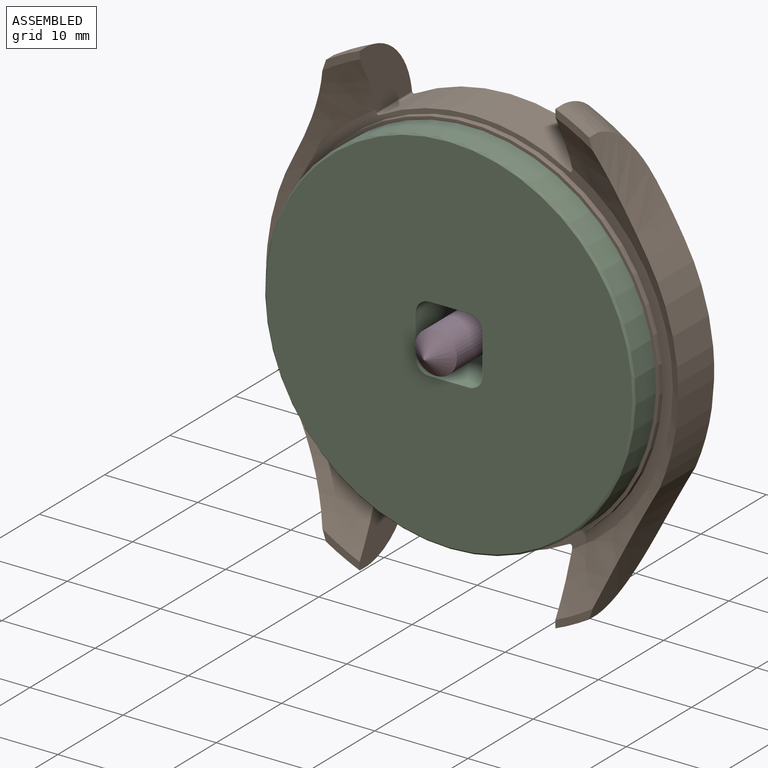
[diagram: assembled view]
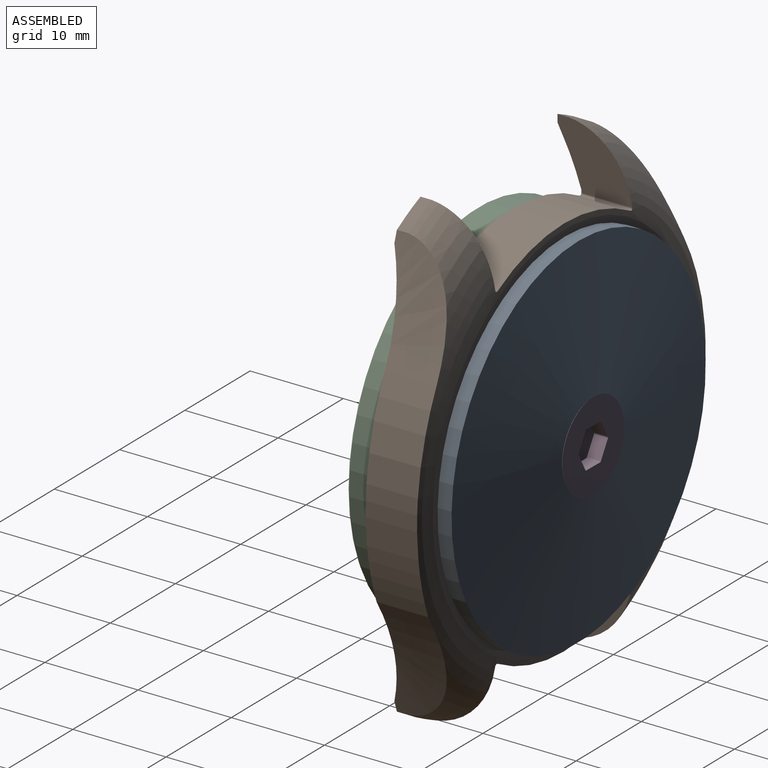
[diagram: assembled view, second angle]
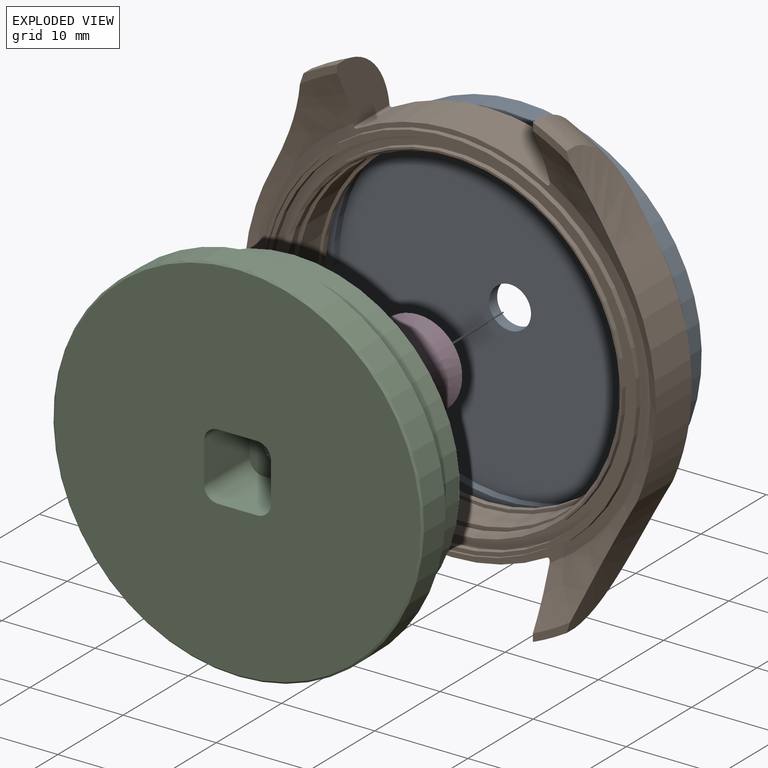
[diagram: exploded view]
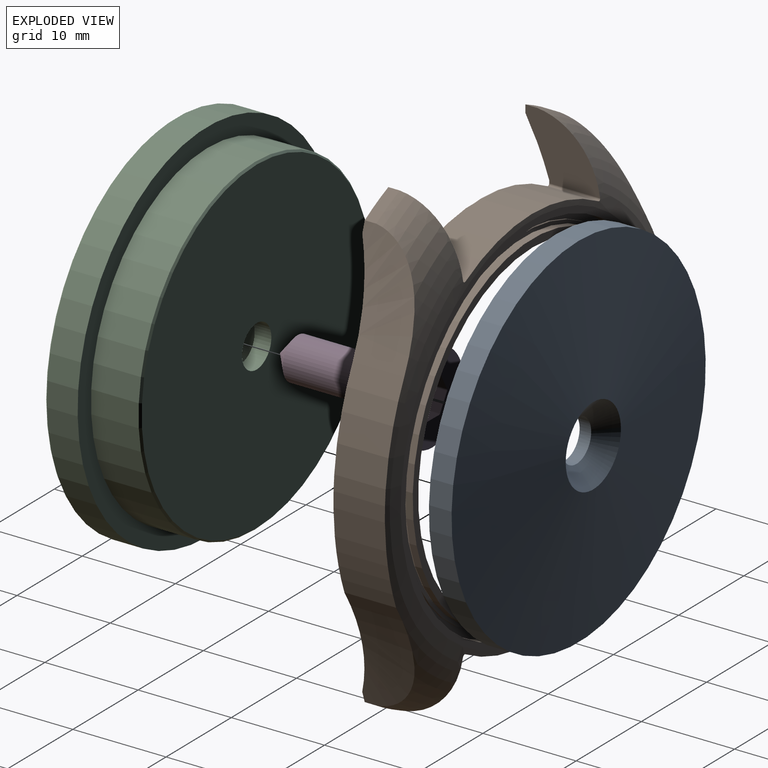
[diagram: exploded view, second angle]
ASSEMBLY  parts=4 mates=3
PART A: 7 faces, bbox 4x38.9x38.9 mm
  f0: cone r=19.47mm half-angle=84.2deg, axis (-1,0,0), area 1141.1mm2, adj f1,f6
  f1: cylinder r=19.47mm len=38.95mm, axis (-1,0,0), area 297.3mm2, adj f0,f2
  f2: plane 38.95x38.95mm, normal (-1,0,0), area 130.5mm2, adj f1,f3
  f3: cylinder r=18.38mm len=36.75mm, axis (-1,0,0), area 107.4mm2, adj f2,f4
  f4: plane 36.75x36.75mm, normal (-1,0,0), area 1044.8mm2, adj f3,f5
  f5: cylinder r=2.25mm len=4.5mm, axis (-1,0,0), area 17.6mm2, adj f4,f6
  f6: bspline ~8.47x8.47mm, area 54.6mm2, adj f0,f5
PART B: 52 faces, bbox 59.5x8.5x59.5 mm
  f0: cylinder r=27.3mm len=3.62mm, axis (0,-1,0), area 5mm2, adj f6,f9,f38,f46
  f1: cylinder r=27.3mm len=3.62mm, axis (0,-1,0), area 5mm2, adj f9,f35,f41,f44
  f2: plane 4x2.97mm, normal (0,-1,0), area 3.3mm2, adj f5,f7,f39,f45
  f3: plane 4x2.97mm, normal (0,-1,0), area 3.3mm2, adj f8,f34,f36,f43
  f4: plane 42.6x41.5mm, normal (0,-1,0), area 113mm2, adj f5,f33,f34,f36,f37,f38,f39,f40
  f5: torus R=10.97mm, axis (0,-1,0), area 113mm2, adj f2,f4,f6,f38,f39,f45,f46,f47
  f6: plane 4x2.97mm, normal (0,-1,0), area 3.3mm2, adj f0,f5,f38,f46
  f7: cylinder r=27.3mm len=3.62mm, axis (0,-1,0), area 5mm2, adj f2,f9,f39,f45
  f8: cylinder r=27.3mm len=3.62mm, axis (0,-1,0), area 5mm2, adj f3,f9,f36,f43
  f9: torus R=19.83mm, axis (0,-1,0), area 417.3mm2, adj f0,f1,f7,f8,f10,f36,f37,f38
  f10: plane 40.38x40.38mm, normal (0,1,0), area 90.5mm2, adj f9,f11
  f11: cylinder r=19.46mm len=38.93mm, axis (0,-1,0), area 137.6mm2, adj f10,f12
  f12: plane 38.93x38.93mm, normal (0,1,0), area 92.9mm2, adj f11,f13
  f13: cylinder r=18.69mm len=37.38mm, axis (0,-1,0), area 23.5mm2, adj f12,f14
  f14: plane 37.38x37.38mm, normal (0,1,0), area 49.2mm2, adj f13,f15
  f15: cone r=18.35mm half-angle=30deg, axis (0,1,0), area 19.9mm2, adj f14,f16
  f16: cylinder r=18.35mm len=36.7mm, axis (0,-1,0), area 89.4mm2, adj f15,f17
  f17: plane 36.7x36.7mm, normal (0,1,0), area 94.9mm2, adj f16,f18
  f18: cylinder r=17.51mm len=35.02mm, axis (0,-1,0), area 66mm2, adj f17,f19
  f19: plane 35.72x35.72mm, normal (0,-1,0), area 38.9mm2, adj f18,f20
  f20: cylinder r=17.86mm len=35.72mm, axis (0,-1,0), area 387.1mm2, adj f19,f21
  f21: plane 36.6x36.6mm, normal (0,-1,0), area 50.3mm2, adj f20,f22
  f22: cylinder r=18.3mm len=36.6mm, axis (0,-1,0), area 34.5mm2, adj f21,f23
  f23: cone r=18.3mm half-angle=43.3deg, axis (0,1,0), area 47.9mm2, adj f22,f24
  f24: cylinder r=18.01mm len=36.03mm, axis (0,-1,0), area 100.6mm2, adj f23,f25
  f25: cone r=18.3mm half-angle=43.3deg, axis (0,-1,0), area 47.9mm2, adj f24,f26
  f26: plane 37.03x37.03mm, normal (0,-1,0), area 24.6mm2, adj f25,f27
  f27: cylinder r=18.51mm len=37.03mm, axis (0,-1,0), area 65.7mm2, adj f26,f28
  f28: plane 39x39mm, normal (0,-1,0), area 117.6mm2, adj f27,f29
  f29: cylinder r=19.5mm len=39mm, axis (0,-1,0), area 75.3mm2, adj f28,f30
  f30: plane 39.83x39.83mm, normal (0,-1,0), area 51.4mm2, adj f29,f31
  f31: cylinder r=19.91mm len=39.83mm, axis (0,-1,0), area 31.3mm2, adj f30,f32
  f32: plane 40.5x40.5mm, normal (0,-1,0), area 42.6mm2, adj f31,f33
  f33: cylinder r=20.25mm len=40.5mm, axis (0,-1,0), area 76.3mm2, adj f4,f32
  f34: torus R=10.97mm, axis (0,-1,0), area 113mm2, adj f3,f4,f35,f36,f41,f42,f43,f44
  f35: plane 4x2.97mm, normal (0,-1,0), area 3.3mm2, adj f1,f34,f41,f44
  f36: plane 8.38x7.32mm, normal (-1,0,0), area 34.6mm2, adj f3,f4,f8,f9,f34,f48
  f37: cylinder r=20.75mm len=20.4mm, axis (0,1,0), area 117.4mm2, adj f4,f9,f48,f49
  f38: plane 8.38x7.32mm, normal (1,0,0), area 34.6mm2, adj f0,f4,f5,f6,f9,f49
  f39: plane 8.38x7.32mm, normal (1,0,0), area 34.6mm2, adj f2,f4,f5,f7,f9,f51
  f40: cylinder r=20.75mm len=20.4mm, axis (0,1,0), area 117.4mm2, adj f4,f9,f50,f51
  f41: plane 8.38x7.32mm, normal (-1,0,0), area 34.6mm2, adj f1,f4,f9,f34,f35,f50
  f42: cylinder r=25.39mm len=21.88mm, axis (0,1,0), area 125.6mm2, adj f9,f34,f43,f44
  f43: cylinder r=67.35mm len=13.52mm, axis (0,1,0), area 76.4mm2, adj f3,f8,f9,f34,f42
  f44: cylinder r=67.35mm len=11.33mm, axis (0,1,0), area 62.4mm2, adj f1,f9,f34,f35,f42
  f45: cylinder r=67.35mm len=11.33mm, axis (0,1,0), area 62.4mm2, adj f2,f5,f7,f9,f47
  f46: cylinder r=67.35mm len=13.52mm, axis (0,1,0), area 76.4mm2, adj f0,f5,f6,f9,f47
  f47: cylinder r=25.39mm len=21.88mm, axis (0,1,0), area 125.6mm2, adj f5,f9,f45,f46
  f48: cylinder r=0.2mm len=5.5mm, axis (0,1,0), area 2.3mm2, adj f4,f9,f36,f37
  f49: cylinder r=0.2mm len=5.5mm, axis (0,1,0), area 2.3mm2, adj f4,f9,f37,f38
  f50: cylinder r=0.2mm len=5.5mm, axis (0,1,0), area 2.3mm2, adj f4,f9,f40,f41
  f51: cylinder r=0.2mm len=5.5mm, axis (0,1,0), area 2.3mm2, adj f4,f9,f39,f40
PART C: 17 faces, bbox 39.8x8.8x39.8 mm
  f0: plane 39.35x39.35mm, normal (0,-1,0), area 1166.2mm2, adj f6,f7,f8,f9,f10,f11,f12,f13
  f1: cylinder r=2.25mm len=4.5mm, axis (0,1,0), area 25.4mm2, adj f4,f14
  f2: plane 39.75x39.75mm, normal (0,1,0), area 242.8mm2, adj f3,f5
  f3: cylinder r=17.82mm len=35.65mm, axis (0,-1,0), area 571.2mm2, adj f2,f15
  f4: plane 35.25x35.25mm, normal (0,1,0), area 960mm2, adj f1,f15
  f5: cylinder r=19.88mm len=39.75mm, axis (0,-1,0), area 412.1mm2, adj f2,f16
  f6: plane 7x4.2mm, normal (0,0,1), area 29.4mm2, adj f0,f7,f13,f14
  f7: cylinder r=1.5mm len=7mm, axis (0,-1,0), area 16.5mm2, adj f0,f6,f8,f14
  f8: plane 7x4.2mm, normal (-1,0,0), area 29.4mm2, adj f0,f7,f9,f14
  f9: cylinder r=1.5mm len=7mm, axis (0,-1,0), area 16.5mm2, adj f0,f8,f10,f14
  f10: plane 7x4.2mm, normal (0,0,-1), area 29.4mm2, adj f0,f9,f11,f14
  f11: cylinder r=1.5mm len=7mm, axis (0,-1,0), area 16.5mm2, adj f0,f10,f12,f14
  f12: plane 7x4.2mm, normal (1,0,0), area 29.4mm2, adj f0,f11,f13,f14
  f13: cylinder r=1.5mm len=7mm, axis (0,-1,0), area 16.5mm2, adj f0,f6,f12,f14
  f14: plane 7.2x7.2mm, normal (0,-1,0), area 34mm2, adj f1,f6,f7,f8,f9,f10,f11,f12
  f15: cone r=17.82mm half-angle=45deg, axis (0,-1,0), area 31.5mm2, adj f3,f4
  f16: cone r=19.68mm half-angle=45deg, axis (0,1,0), area 35.1mm2, adj f0,f5
PART D: 17 faces, bbox 9.5x16.4x9.5 mm
  f0: cylinder r=2.25mm len=12mm, axis (0,-1,0), area 169.6mm2, adj f1,f3
  f1: cone r=2.25mm half-angle=45deg, axis (0,1,0), area 77.8mm2, adj f0,f2
  f2: plane 9.5x9.5mm, normal (0,1,0), area 57.3mm2, adj f1,f4,f5,f6,f7,f8,f9,f11
  f3: cone r=2.25mm half-angle=50deg, axis (0,1,0), area 20.8mm2, adj f0
  f4: plane 2.05x1.5mm, normal (-0.01,0,1), area 3.1mm2, adj f2,f10,f11,f16
  f5: plane 1.76x1.5mm, normal (0.86,0,0.51), area 3.1mm2, adj f2,f10,f11,f12
  f6: plane 1.79x1.5mm, normal (0.87,0,-0.49), area 3.1mm2, adj f2,f10,f12,f13
  f7: plane 2.05x1.5mm, normal (0.01,0,-1), area 3.1mm2, adj f2,f10,f13,f14
  f8: plane 1.76x1.5mm, normal (-0.86,0,-0.51), area 3.1mm2, adj f2,f10,f14,f15
  f9: plane 1.79x1.5mm, normal (-0.87,0,0.49), area 3.1mm2, adj f2,f10,f15,f16
  f10: plane 4.51x3.99mm, normal (0,1,0), area 13.5mm2, adj f4,f5,f6,f7,f8,f9,f11,f12
  f11: cylinder r=0.2mm len=1.5mm, axis (0,-1,0), area 0.3mm2, adj f2,f4,f5,f10
  f12: cylinder r=0.2mm len=1.5mm, axis (0,-1,0), area 0.3mm2, adj f2,f5,f6,f10
  f13: cylinder r=0.2mm len=1.5mm, axis (0,-1,0), area 0.3mm2, adj f2,f6,f7,f10
  f14: cylinder r=0.2mm len=1.5mm, axis (0,-1,0), area 0.3mm2, adj f2,f7,f8,f10
  f15: cylinder r=0.2mm len=1.5mm, axis (0,-1,0), area 0.3mm2, adj f2,f8,f9,f10
  f16: cylinder r=0.2mm len=1.5mm, axis (0,-1,0), area 0.3mm2, adj f2,f4,f9,f10
PLACE A rot(axis=(0,0,1),90deg) t=(-18.49,-8.27,-2.25)mm
PLACE B t=(-0.93,-13.29,-2.25)mm
PLACE C t=(-18.44,-13.04,-2.25)mm fixed
PLACE D rot(axis=(1,0,0),0deg) t=(-18.44,-21.56,-2.25)mm
MATE fastened C.f3 <-> B.f0  axis (0,1,0) through (-18.44,-7.74,-2.25)mm
MATE fastened A.f0 <-> D.f0  axis (0,-1,0) through (-18.44,-4.86,-2.25)mm
MATE fastened B.f0 <-> A.f0  axis (0,1,0) through (-18.44,-8.07,-2.25)mm
